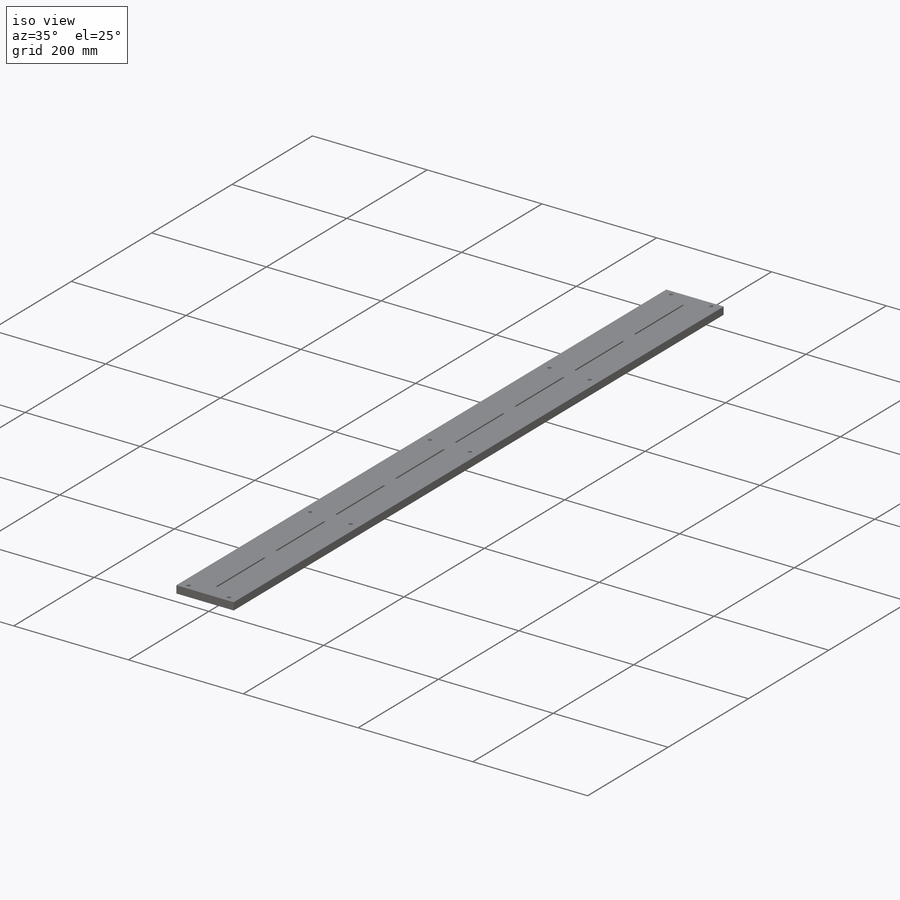
[diagram: iso view]
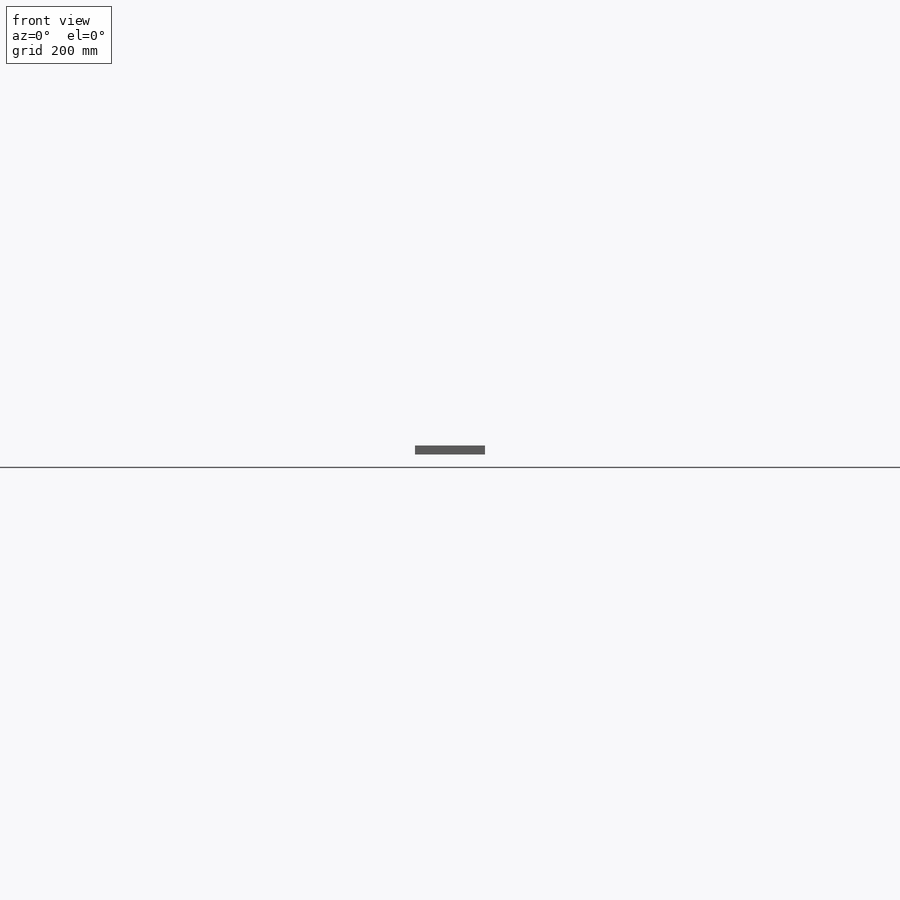
[diagram: front view]
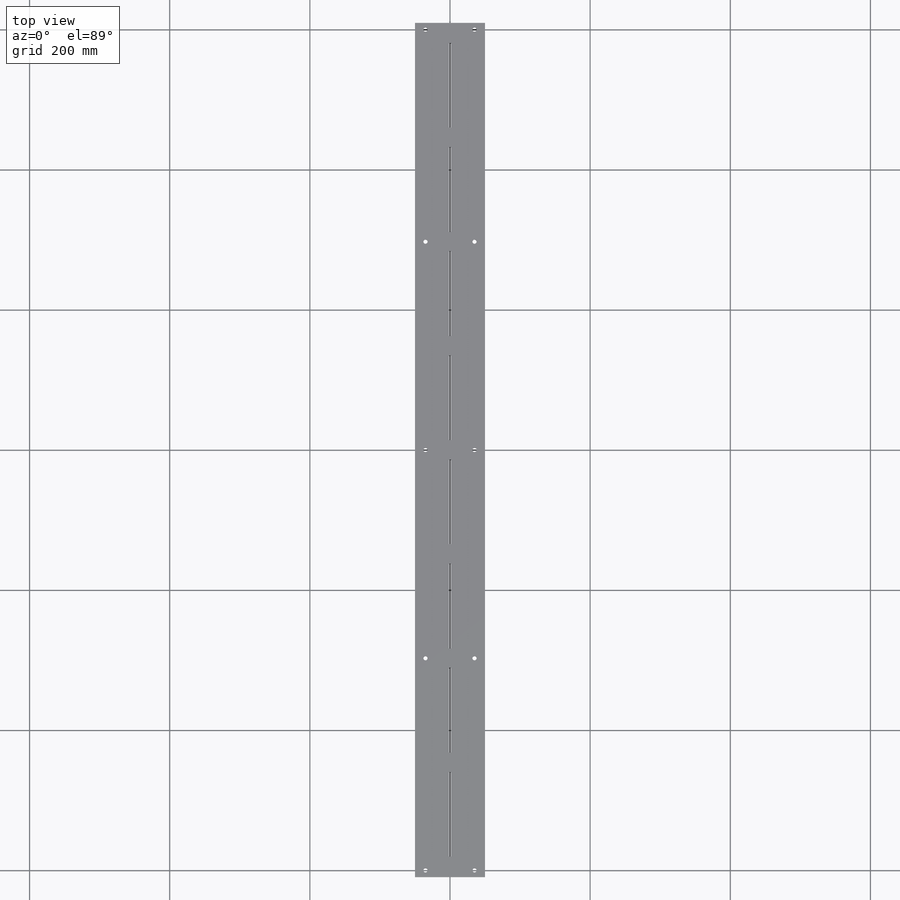
[diagram: top view]
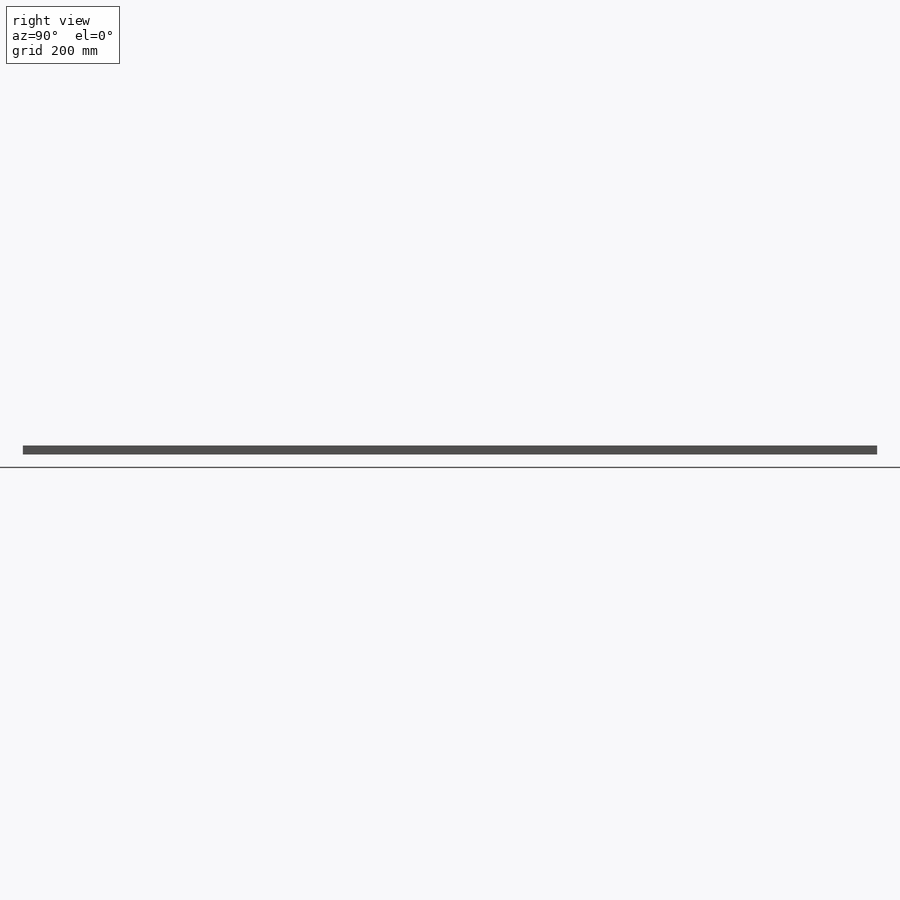
[diagram: right view]
SOLIDWORKS PART (.sldprt)
format: sldprt  version: not decoded by parser v0  size: 305,664 bytes
history: native  units: mm
features: sketch x4, cut_extrude x2, material x1, extrude x1 (+11 scaffold rows collapsed)
feature tree (19):
  scaffold x11  (default folders/planes/origin — collapsed)
  material  "Material <not specified>"
  sketch  "Sketch1"  dims[D1=1219.2mm D2=100.0mm]
  extrude  "Boss-Extrude1"  Depth=13mm
  sketch  "Sketch5"  dims[c1.D1=151.5mm c1.D3=20.0mm c1.D4=10.0mm c2.D1=20.0mm c2.D5=138.65mm c2.D2=8.0]
  sketch  "Sketch6"  dims[c1.D1=6.0mm c1.D2=6.0mm c1.D6=6.0mm c1.D8=6.0mm c2.D2=35.0mm c2.D3=35.0mm c2.D5=10.5mm c2.D6=9.5mm c3.D5=5.0mm c3.D6=15.0mm c3.D8=9.5mm c3.D9=15.0mm c3.D4=2.0 c3.D7=2.0]
  cut_extrude  "Cut-Extrude4"  Depth=20mm
  sketch  "Sketch7"  dims[c1.D2=1.3mm c1.D1=0.5mm c1.D7=1.3mm c1.D8=1.3mm c1.D9=1.3mm c1.D10=1.3mm c2.D1=10.0mm c2.D3=10.0mm c2.D5=10.0mm c2.D6=148.65mm c2.D7=148.65mm c2.D8=148.65mm c2.D9=148.65mm c2.D10=148.65mm c2.D4=8.0]
  cut_extrude  "Cut-Extrude5"  Depth=30mm
decode coverage: 7 of 7 modeling features carry decoded parameters
note: suppression state not decoded; provenance and decode notes live in map.json
